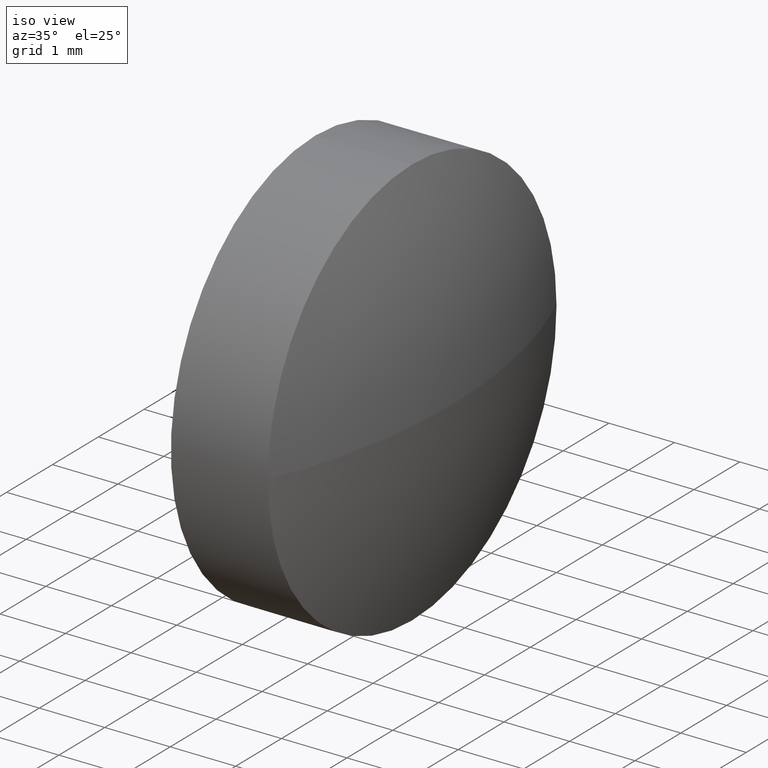
[diagram: clean part render]
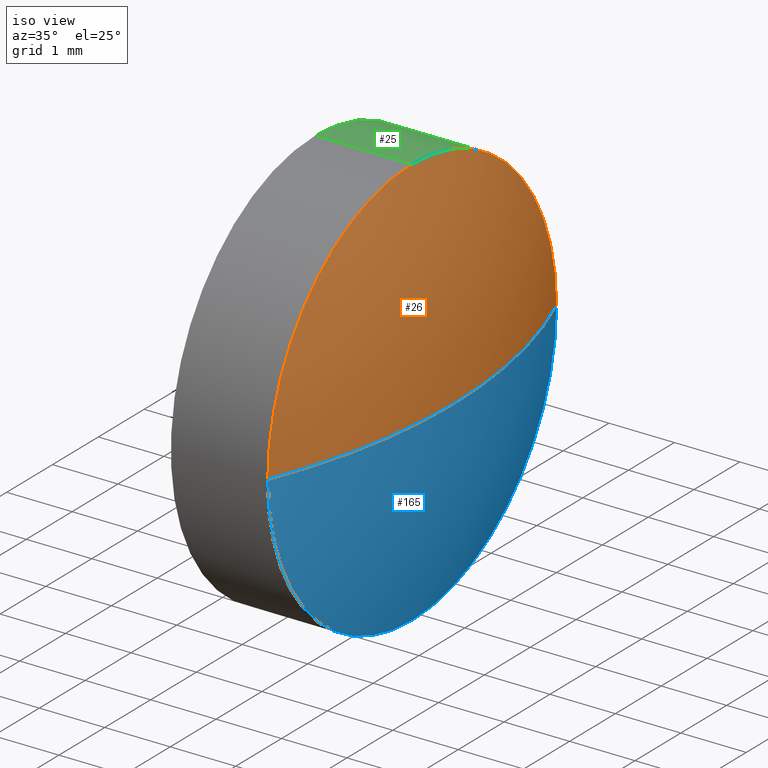
[diagram: same view with three faces highlighted in distinct colors, each labeled with its STEP entity id]
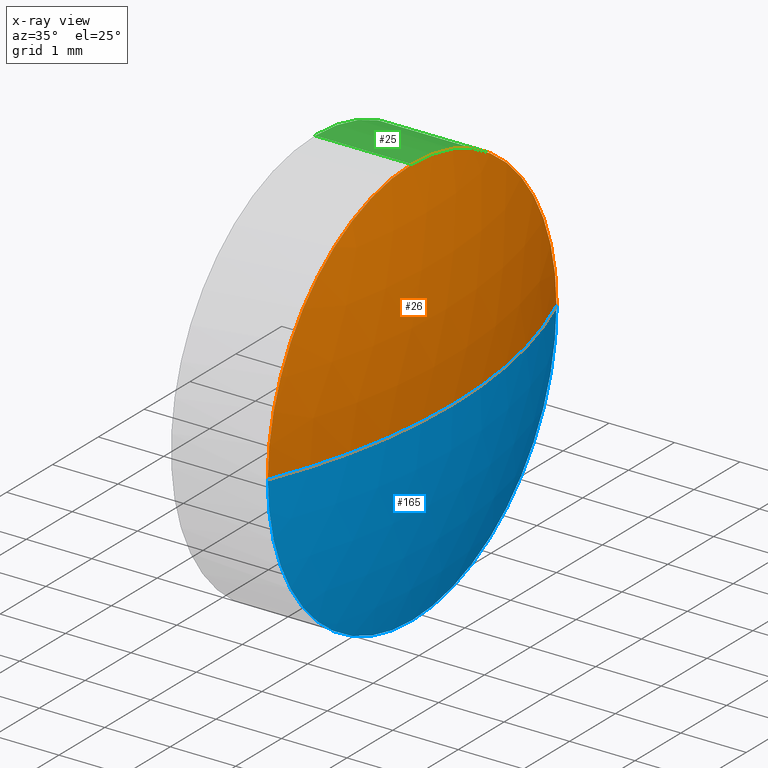
[diagram: x-ray of the same camera — body ghosted, the three highlighted faces saturated]
A machine part, iso view with three faces highlighted in distinct colors.
The next image is the same camera in x-ray (body ghosted, the three faces saturated) — at least one of them is partly hidden behind the body in this view.
Their STEP definitions:

[orange] entity #26 — the highlighted spherical surface has radius 8.312 mm.
#4 = CARTESIAN_POINT ( 'NONE',  ( 444.5033712523841700, -98.43972951502320300, 3.150000000000013700 ) ) ;
#7 = CARTESIAN_POINT ( 'NONE',  ( 444.5033712523841700, -95.28972951502321100, 0.0000000000000000000 ) ) ;
#9 = CIRCLE ( 'NONE', #48, 8.312016129032318900 ) ;
#20 = DIRECTION ( 'NONE',  ( 0.0000000000000000000, 0.0000000000000000000, 1.000000000000000000 ) ) ;
#23 = AXIS2_PLACEMENT_3D ( 'NONE', #116, #129, #78 ) ;
#26 = ADVANCED_FACE ( 'NONE', ( #121 ), #37, .T. ) ;
#29 = DIRECTION ( 'NONE',  ( -1.000000000000000000, -0.0000000000000000000, -0.0000000000000000000 ) ) ;
#30 = EDGE_CURVE ( 'NONE', #136, #114, #42, .T. ) ;
#37 = SPHERICAL_SURFACE ( 'NONE', #181, 8.312016129032320700 ) ;
#42 = CIRCLE ( 'NONE', #115, 3.150000000000013700 ) ;
#45 = CARTESIAN_POINT ( 'NONE',  ( 444.5033712523841700, -98.43972951502320300, 0.0000000000000000000 ) ) ;
#46 = CARTESIAN_POINT ( 'NONE',  ( 444.5033712523841700, -101.5897295150232700, -3.857637417314167600E-016 ) ) ;
#48 = AXIS2_PLACEMENT_3D ( 'NONE', #69, #110, #123 ) ;
#49 = CARTESIAN_POINT ( 'NONE',  ( 444.5033712523841700, -98.43972951502320300, 0.0000000000000000000 ) ) ;
#61 = ORIENTED_EDGE ( 'NONE', *, *, #108, .F. ) ;
#65 = EDGE_CURVE ( 'NONE', #86, #146, #9, .T. ) ;
#69 = CARTESIAN_POINT ( 'NONE',  ( 436.8113551233518600, -98.43972951502324500, 0.0000000000000000000 ) ) ;
#73 = CARTESIAN_POINT ( 'NONE',  ( 445.1233712523841700, -98.43972951502324500, 0.0000000000000000000 ) ) ;
#78 = DIRECTION ( 'NONE',  ( 0.0000000000000000000, 1.000000000000000000, 1.224646799147353700E-016 ) ) ;
#82 = EDGE_LOOP ( 'NONE', ( #61, #99, #141, #119 ) ) ;
#85 = CIRCLE ( 'NONE', #176, 3.150000000000013700 ) ;
#86 = VERTEX_POINT ( 'NONE', #73 ) ;
#87 = DIRECTION ( 'NONE',  ( -1.000000000000000000, -0.0000000000000000000, -0.0000000000000000000 ) ) ;
#96 = DIRECTION ( 'NONE',  ( 0.0000000000000000000, 1.000000000000000000, 0.0000000000000000000 ) ) ;
#99 = ORIENTED_EDGE ( 'NONE', *, *, #65, .T. ) ;
#100 = CIRCLE ( 'NONE', #23, 8.312016129032318900 ) ;
#101 = DIRECTION ( 'NONE',  ( 0.0000000000000000000, 0.0000000000000000000, 1.000000000000000000 ) ) ;
#108 = EDGE_CURVE ( 'NONE', #86, #136, #100, .T. ) ;
#110 = DIRECTION ( 'NONE',  ( -0.0000000000000000000, 0.0000000000000000000, 1.000000000000000000 ) ) ;
#114 = VERTEX_POINT ( 'NONE', #4 ) ;
#115 = AXIS2_PLACEMENT_3D ( 'NONE', #45, #29, #101 ) ;
#116 = CARTESIAN_POINT ( 'NONE',  ( 436.8113551233518600, -98.43972951502324500, 0.0000000000000000000 ) ) ;
#119 = ORIENTED_EDGE ( 'NONE', *, *, #30, .F. ) ;
#121 = FACE_OUTER_BOUND ( 'NONE', #82, .T. ) ;
#123 = DIRECTION ( 'NONE',  ( 1.000000000000000000, 0.0000000000000000000, 0.0000000000000000000 ) ) ;
#128 = DIRECTION ( 'NONE',  ( -0.0000000000000000000, 0.0000000000000000000, -1.000000000000000000 ) ) ;
#129 = DIRECTION ( 'NONE',  ( 0.0000000000000000000, 1.224646799147353200E-016, -1.000000000000000000 ) ) ;
#136 = VERTEX_POINT ( 'NONE', #46 ) ;
#141 = ORIENTED_EDGE ( 'NONE', *, *, #159, .F. ) ;
#146 = VERTEX_POINT ( 'NONE', #7 ) ;
#159 = EDGE_CURVE ( 'NONE', #114, #146, #85, .T. ) ;
#168 = CARTESIAN_POINT ( 'NONE',  ( 436.8113551233518600, -98.43972951502324500, 0.0000000000000000000 ) ) ;
#176 = AXIS2_PLACEMENT_3D ( 'NONE', #49, #87, #20 ) ;
#181 = AXIS2_PLACEMENT_3D ( 'NONE', #168, #128, #96 ) ;

[blue] entity #165 — the highlighted spherical surface has radius 8.312 mm.
#3 = ORIENTED_EDGE ( 'NONE', *, *, #65, .F. ) ;
#7 = CARTESIAN_POINT ( 'NONE',  ( 444.5033712523841700, -95.28972951502321100, 0.0000000000000000000 ) ) ;
#9 = CIRCLE ( 'NONE', #48, 8.312016129032318900 ) ;
#18 = DIRECTION ( 'NONE',  ( -0.0000000000000000000, 0.0000000000000000000, -1.000000000000000000 ) ) ;
#19 = AXIS2_PLACEMENT_3D ( 'NONE', #140, #18, #77 ) ;
#23 = AXIS2_PLACEMENT_3D ( 'NONE', #116, #129, #78 ) ;
#46 = CARTESIAN_POINT ( 'NONE',  ( 444.5033712523841700, -101.5897295150232700, -3.857637417314167600E-016 ) ) ;
#47 = CARTESIAN_POINT ( 'NONE',  ( 444.5033712523841700, -98.43972951502320300, -3.150000000000013700 ) ) ;
#48 = AXIS2_PLACEMENT_3D ( 'NONE', #69, #110, #123 ) ;
#50 = CIRCLE ( 'NONE', #80, 3.150000000000013700 ) ;
#54 = ORIENTED_EDGE ( 'NONE', *, *, #108, .T. ) ;
#57 = SPHERICAL_SURFACE ( 'NONE', #19, 8.312016129032320700 ) ;
#59 = DIRECTION ( 'NONE',  ( 0.0000000000000000000, 0.0000000000000000000, 1.000000000000000000 ) ) ;
#60 = AXIS2_PLACEMENT_3D ( 'NONE', #178, #103, #76 ) ;
#65 = EDGE_CURVE ( 'NONE', #86, #146, #9, .T. ) ;
#69 = CARTESIAN_POINT ( 'NONE',  ( 436.8113551233518600, -98.43972951502324500, 0.0000000000000000000 ) ) ;
#70 = EDGE_CURVE ( 'NONE', #109, #136, #50, .T. ) ;
#73 = CARTESIAN_POINT ( 'NONE',  ( 445.1233712523841700, -98.43972951502324500, 0.0000000000000000000 ) ) ;
#76 = DIRECTION ( 'NONE',  ( 0.0000000000000000000, 0.0000000000000000000, 1.000000000000000000 ) ) ;
#77 = DIRECTION ( 'NONE',  ( 0.0000000000000000000, 1.000000000000000000, 0.0000000000000000000 ) ) ;
#78 = DIRECTION ( 'NONE',  ( 0.0000000000000000000, 1.000000000000000000, 1.224646799147353700E-016 ) ) ;
#80 = AXIS2_PLACEMENT_3D ( 'NONE', #167, #94, #59 ) ;
#86 = VERTEX_POINT ( 'NONE', #73 ) ;
#94 = DIRECTION ( 'NONE',  ( -1.000000000000000000, -0.0000000000000000000, -0.0000000000000000000 ) ) ;
#100 = CIRCLE ( 'NONE', #23, 8.312016129032318900 ) ;
#103 = DIRECTION ( 'NONE',  ( -1.000000000000000000, -0.0000000000000000000, -0.0000000000000000000 ) ) ;
#108 = EDGE_CURVE ( 'NONE', #86, #136, #100, .T. ) ;
#109 = VERTEX_POINT ( 'NONE', #47 ) ;
#110 = DIRECTION ( 'NONE',  ( -0.0000000000000000000, 0.0000000000000000000, 1.000000000000000000 ) ) ;
#112 = EDGE_CURVE ( 'NONE', #146, #109, #135, .T. ) ;
#113 = EDGE_LOOP ( 'NONE', ( #3, #54, #134, #144 ) ) ;
#116 = CARTESIAN_POINT ( 'NONE',  ( 436.8113551233518600, -98.43972951502324500, 0.0000000000000000000 ) ) ;
#123 = DIRECTION ( 'NONE',  ( 1.000000000000000000, 0.0000000000000000000, 0.0000000000000000000 ) ) ;
#129 = DIRECTION ( 'NONE',  ( 0.0000000000000000000, 1.224646799147353200E-016, -1.000000000000000000 ) ) ;
#134 = ORIENTED_EDGE ( 'NONE', *, *, #70, .F. ) ;
#135 = CIRCLE ( 'NONE', #60, 3.150000000000013700 ) ;
#136 = VERTEX_POINT ( 'NONE', #46 ) ;
#140 = CARTESIAN_POINT ( 'NONE',  ( 436.8113551233518600, -98.43972951502324500, 0.0000000000000000000 ) ) ;
#144 = ORIENTED_EDGE ( 'NONE', *, *, #112, .F. ) ;
#146 = VERTEX_POINT ( 'NONE', #7 ) ;
#165 = ADVANCED_FACE ( 'NONE', ( #166 ), #57, .T. ) ;
#166 = FACE_OUTER_BOUND ( 'NONE', #113, .T. ) ;
#167 = CARTESIAN_POINT ( 'NONE',  ( 444.5033712523841700, -98.43972951502320300, 0.0000000000000000000 ) ) ;
#178 = CARTESIAN_POINT ( 'NONE',  ( 444.5033712523841700, -98.43972951502320300, 0.0000000000000000000 ) ) ;

[green] entity #25 — the highlighted cylindrical surface (partial cylindrical patch) has radius 3.15 mm, axis along (-1, -0, -0).
#1 = VECTOR ( 'NONE', #74, 1000.000000000000000 ) ;
#4 = CARTESIAN_POINT ( 'NONE',  ( 444.5033712523841700, -98.43972951502320300, 3.150000000000013700 ) ) ;
#5 = DIRECTION ( 'NONE',  ( -1.000000000000000000, -0.0000000000000000000, -0.0000000000000000000 ) ) ;
#7 = CARTESIAN_POINT ( 'NONE',  ( 444.5033712523841700, -95.28972951502321100, 0.0000000000000000000 ) ) ;
#11 = ORIENTED_EDGE ( 'NONE', *, *, #125, .T. ) ;
#13 = ORIENTED_EDGE ( 'NONE', *, *, #169, .F. ) ;
#15 = AXIS2_PLACEMENT_3D ( 'NONE', #51, #5, #174 ) ;
#16 = VECTOR ( 'NONE', #158, 1000.000000000000000 ) ;
#20 = DIRECTION ( 'NONE',  ( 0.0000000000000000000, 0.0000000000000000000, 1.000000000000000000 ) ) ;
#21 = CARTESIAN_POINT ( 'NONE',  ( 442.2176608398421500, -98.43972951502320300, 3.150000000000013700 ) ) ;
#25 = ADVANCED_FACE ( 'NONE', ( #84 ), #171, .T. ) ;
#31 = ORIENTED_EDGE ( 'NONE', *, *, #112, .T. ) ;
#38 = VERTEX_POINT ( 'NONE', #83 ) ;
#39 = ORIENTED_EDGE ( 'NONE', *, *, #88, .F. ) ;
#43 = CARTESIAN_POINT ( 'NONE',  ( 443.0233712523840900, -98.43972951502320300, -3.150000000000013700 ) ) ;
#44 = EDGE_LOOP ( 'NONE', ( #31, #11, #39, #13, #120 ) ) ;
#47 = CARTESIAN_POINT ( 'NONE',  ( 444.5033712523841700, -98.43972951502320300, -3.150000000000013700 ) ) ;
#49 = CARTESIAN_POINT ( 'NONE',  ( 444.5033712523841700, -98.43972951502320300, 0.0000000000000000000 ) ) ;
#51 = CARTESIAN_POINT ( 'NONE',  ( 443.0233712523840900, -98.43972951502320300, 0.0000000000000000000 ) ) ;
#58 = CARTESIAN_POINT ( 'NONE',  ( 442.2176608398421500, -98.43972951502320300, 0.0000000000000000000 ) ) ;
#60 = AXIS2_PLACEMENT_3D ( 'NONE', #178, #103, #76 ) ;
#64 = LINE ( 'NONE', #21, #16 ) ;
#67 = DIRECTION ( 'NONE',  ( -1.000000000000000000, -0.0000000000000000000, -0.0000000000000000000 ) ) ;
#74 = DIRECTION ( 'NONE',  ( -1.000000000000000000, -0.0000000000000000000, -0.0000000000000000000 ) ) ;
#75 = VERTEX_POINT ( 'NONE', #43 ) ;
#76 = DIRECTION ( 'NONE',  ( 0.0000000000000000000, 0.0000000000000000000, 1.000000000000000000 ) ) ;
#83 = CARTESIAN_POINT ( 'NONE',  ( 443.0233712523840900, -98.43972951502320300, 3.150000000000013700 ) ) ;
#84 = FACE_OUTER_BOUND ( 'NONE', #44, .T. ) ;
#85 = CIRCLE ( 'NONE', #176, 3.150000000000013700 ) ;
#87 = DIRECTION ( 'NONE',  ( -1.000000000000000000, -0.0000000000000000000, -0.0000000000000000000 ) ) ;
#88 = EDGE_CURVE ( 'NONE', #38, #75, #149, .T. ) ;
#103 = DIRECTION ( 'NONE',  ( -1.000000000000000000, -0.0000000000000000000, -0.0000000000000000000 ) ) ;
#109 = VERTEX_POINT ( 'NONE', #47 ) ;
#112 = EDGE_CURVE ( 'NONE', #146, #109, #135, .T. ) ;
#114 = VERTEX_POINT ( 'NONE', #4 ) ;
#120 = ORIENTED_EDGE ( 'NONE', *, *, #159, .T. ) ;
#125 = EDGE_CURVE ( 'NONE', #109, #75, #142, .T. ) ;
#135 = CIRCLE ( 'NONE', #60, 3.150000000000013700 ) ;
#142 = LINE ( 'NONE', #153, #1 ) ;
#146 = VERTEX_POINT ( 'NONE', #7 ) ;
#148 = AXIS2_PLACEMENT_3D ( 'NONE', #58, #67, #151 ) ;
#149 = CIRCLE ( 'NONE', #15, 3.150000000000013700 ) ;
#151 = DIRECTION ( 'NONE',  ( 0.0000000000000000000, 0.0000000000000000000, 1.000000000000000000 ) ) ;
#153 = CARTESIAN_POINT ( 'NONE',  ( 442.2176608398421500, -98.43972951502320300, -3.150000000000013700 ) ) ;
#158 = DIRECTION ( 'NONE',  ( -1.000000000000000000, -0.0000000000000000000, -0.0000000000000000000 ) ) ;
#159 = EDGE_CURVE ( 'NONE', #114, #146, #85, .T. ) ;
#169 = EDGE_CURVE ( 'NONE', #114, #38, #64, .T. ) ;
#171 = CYLINDRICAL_SURFACE ( 'NONE', #148, 3.150000000000013700 ) ;
#174 = DIRECTION ( 'NONE',  ( 0.0000000000000000000, 0.0000000000000000000, 1.000000000000000000 ) ) ;
#176 = AXIS2_PLACEMENT_3D ( 'NONE', #49, #87, #20 ) ;
#178 = CARTESIAN_POINT ( 'NONE',  ( 444.5033712523841700, -98.43972951502320300, 0.0000000000000000000 ) ) ;